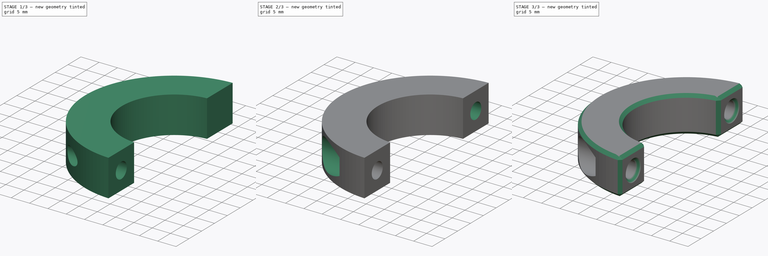
[diagram: build sequence overview — one tinted view per stage of 3, left to right]
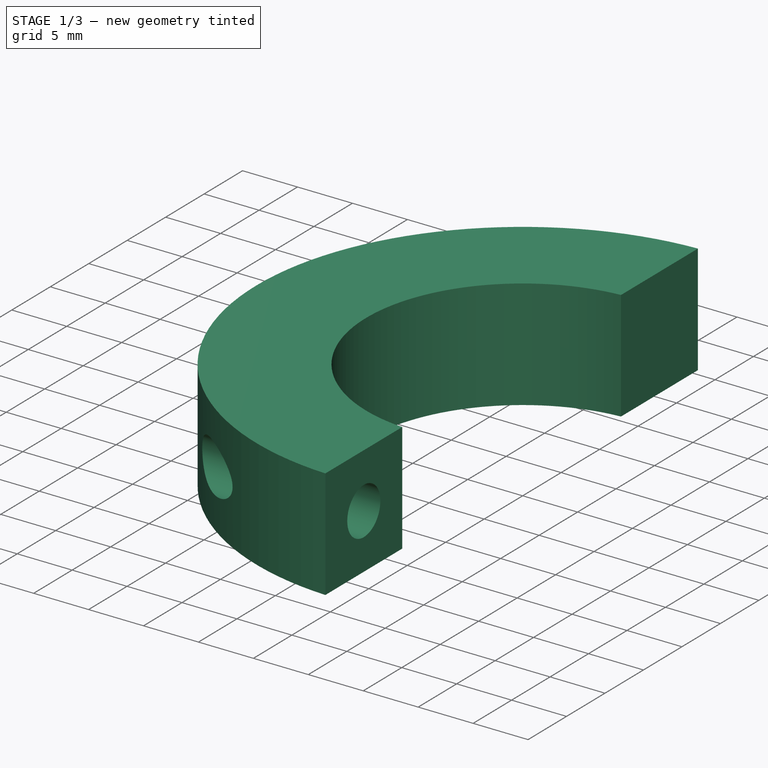
[diagram: stage 1 of 3 — iso view after this stage's code; geometry added in this stage tinted green]
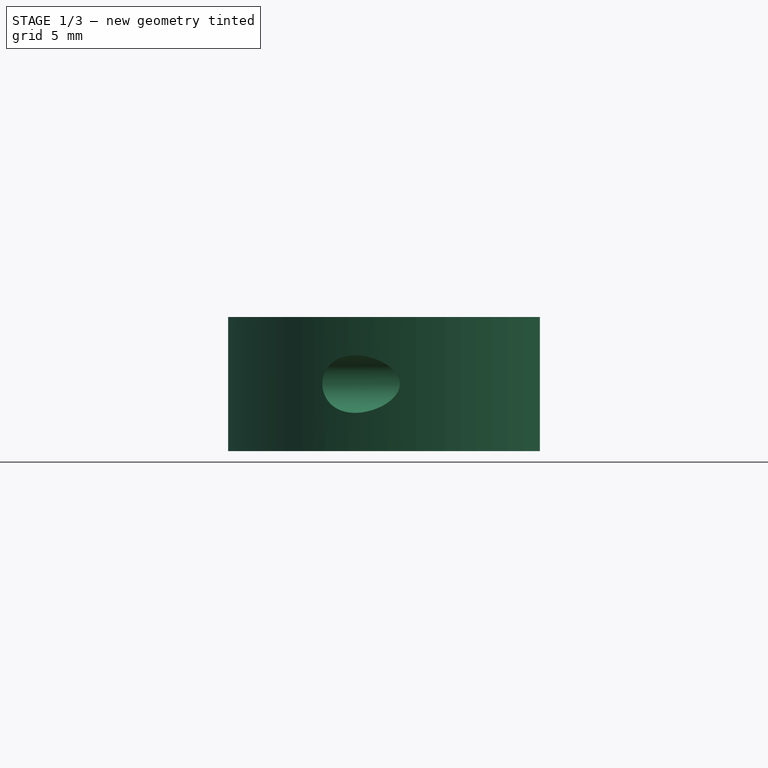
[diagram: stage 1 of 3 — front view after this stage's code; geometry added in this stage tinted green]
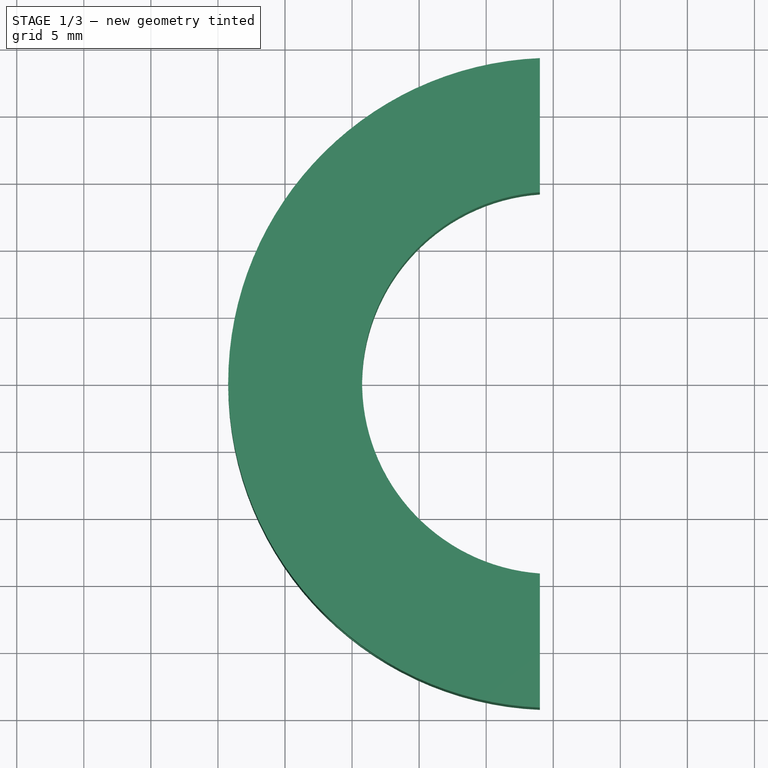
[diagram: stage 1 of 3 — top view after this stage's code; geometry added in this stage tinted green]
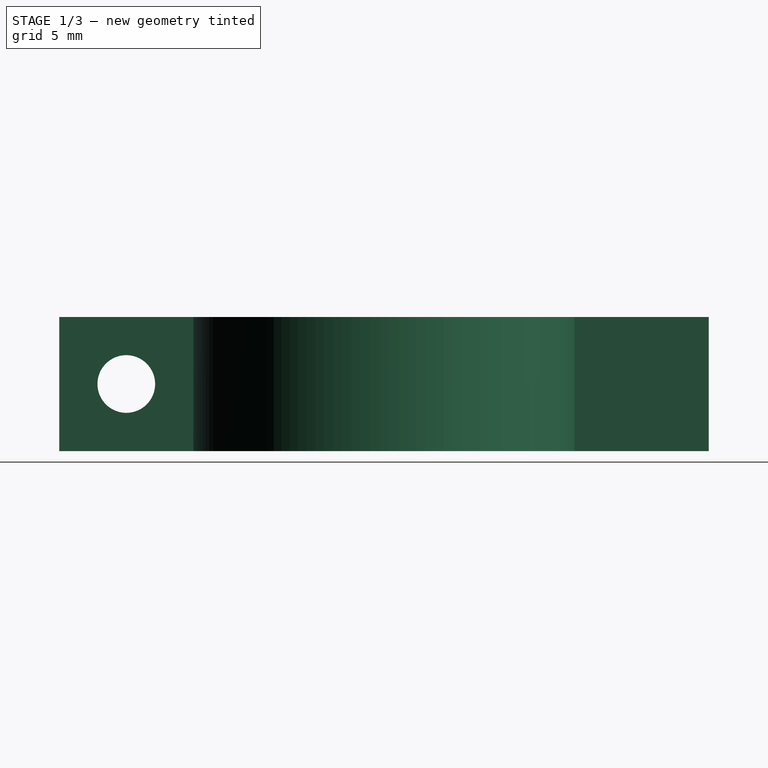
[diagram: stage 1 of 3 — right view after this stage's code; geometry added in this stage tinted green]
FCSTD DOCUMENT  (FreeCAD 0.19R24291 (Git))
Label: chair_height_retainer_M4
License: Other
LicenseURL: https://ohwr.org/project/cernohl/wikis/Documents/CERN-OHL-version-2
objects: Sketcher::SketchObject×5, PartDesign::Pocket×4, PartDesign::Pad×1, PartDesign::Plane×1, PartDesign::Chamfer×1, PartDesign::Body×1
note: 19 computed .brp shape members not serialized (recipe doc carries the construction recipe); baked Part::Feature solids carry a one-line shape summary decoded from their .brp

FEATURE [Sketcher::SketchObject] Sketch
  FullyConstrained = true
  MapMode = 5
  Support = -> [XY_Plane]
  sketch-geometry (5):
    g0: Circle CenterX=0 CenterY=0 CenterZ=0 NormalX=0 NormalY=0 NormalZ=1 AngleXU=0 Radius=14.25
    g1: LineSegment StartX=-1 StartY=14.2149 StartZ=0 EndX=-1 EndY=24.2149 EndZ=0
    g2: ArcOfCircle CenterX=0 CenterY=0 CenterZ=0 NormalX=0 NormalY=0 NormalZ=1 AngleXU=0 Radius=24.2355 StartAngle=1.61207 EndAngle=4.67112
    g3: LineSegment StartX=-1 StartY=-24.2149 StartZ=0 EndX=-1 EndY=-14.2149 EndZ=0
    g4: ArcOfCircle CenterX=0 CenterY=0 CenterZ=0 NormalX=0 NormalY=0 NormalZ=1 AngleXU=0 Radius=14.25 StartAngle=1.64103 EndAngle=4.64216
  constraints (14):
    c: Coincident(g0,g-1)
    c: Diameter(g0) = 28.5
    c: PointOnObject(g1,g0)
    c: Vertical(g1)
    c: Vertical(g3)
    c: Coincident(g4,g1)
    c: Coincident(g2,g3)
    c: Coincident(g4,g2)
    c: Coincident(g4,g-1)
    c: Coincident(g2,g1)
    c: Vertical(g1,g3)
    c: Coincident(g4,g3)
    c: DistanceY(g1,g1) = 10
    c: DistanceX(g-2,g1) = -1
FEATURE [PartDesign::Pad] Pad
  Direction = (1,1,1)
  Length = 10
  Length2 = 100
  Profile = -> Sketch
  Type = 0
FEATURE [Sketcher::SketchObject] Sketch001
  ExternalGeometry = -> [Pad]
  FullyConstrained = true
  MapMode = 5
  Placement = pos=(-1,0,0) rot=(0.57735,0.57735,0.57735;2.0944rad)
  Support = -> [Pad]
  sketch-geometry (3):
    g0: LineSegment StartX=-24.2149 StartY=5 StartZ=0 EndX=-19.2149 EndY=5 EndZ=0
    g1: LineSegment StartX=-19.2149 StartY=5 StartZ=0 EndX=-14.2149 EndY=5 EndZ=0
    g2: Circle CenterX=-19.2149 CenterY=5 CenterZ=0 NormalX=0 NormalY=0 NormalZ=1 AngleXU=0 Radius=2.15
  constraints (8):
    c: Horizontal(g0)
    c: Coincident(g1,g0)
    c: PointOnObject(g1,g-4)
    c: Horizontal(g1)
    c: Equal(g0,g1)
    c: Symmetric(g-3,g-3,g0)
    c: Coincident(g2,g0)
    c: Diameter(g2) = 4.3
FEATURE [PartDesign::Pocket] Pocket
  BaseFeature = -> Pad
  Length = 5
  Length2 = 100
  Profile = -> Sketch001
  Type = 1
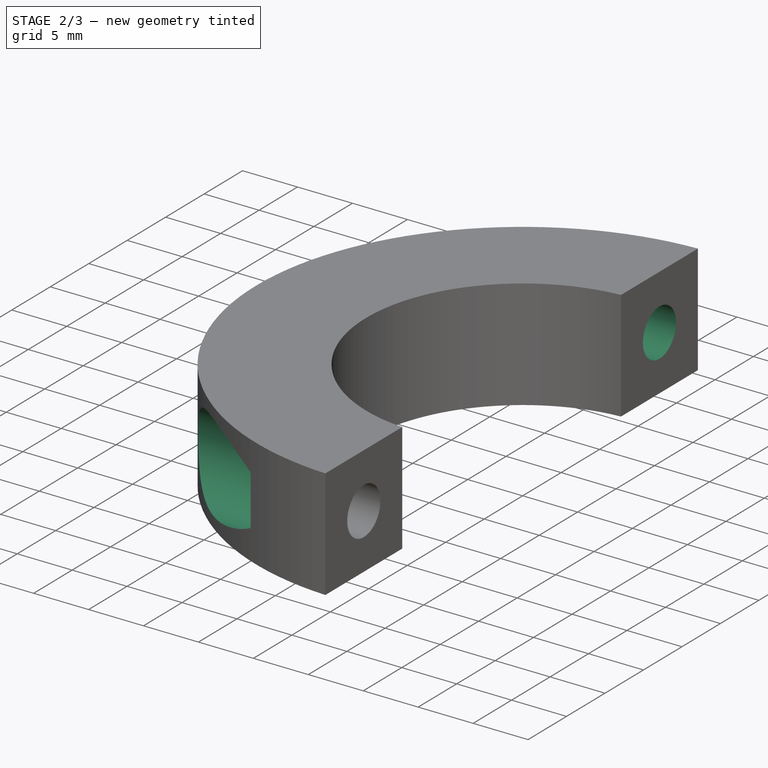
[diagram: stage 2 of 3 — iso view after this stage's code; geometry added in this stage tinted green]
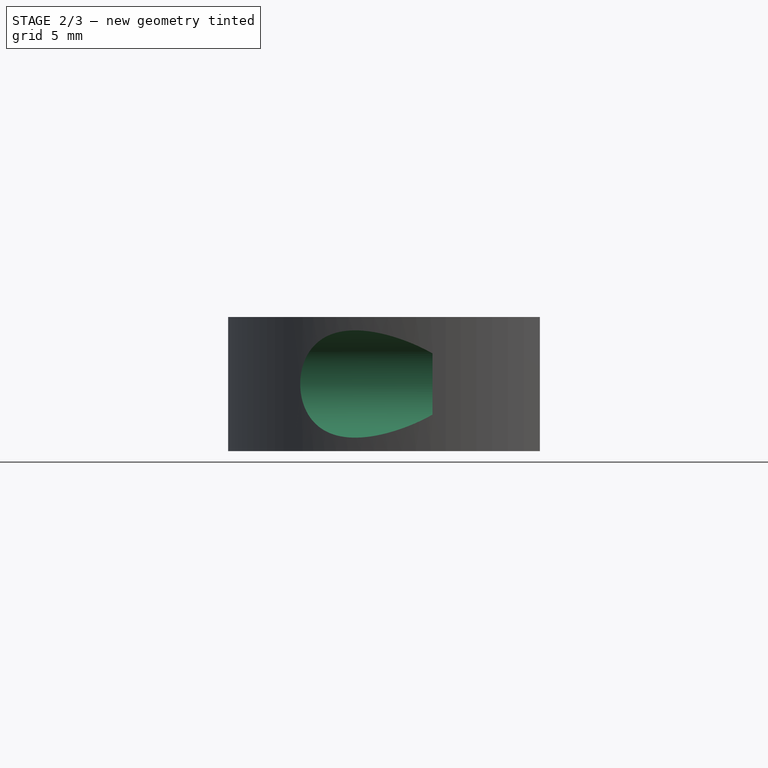
[diagram: stage 2 of 3 — front view after this stage's code; geometry added in this stage tinted green]
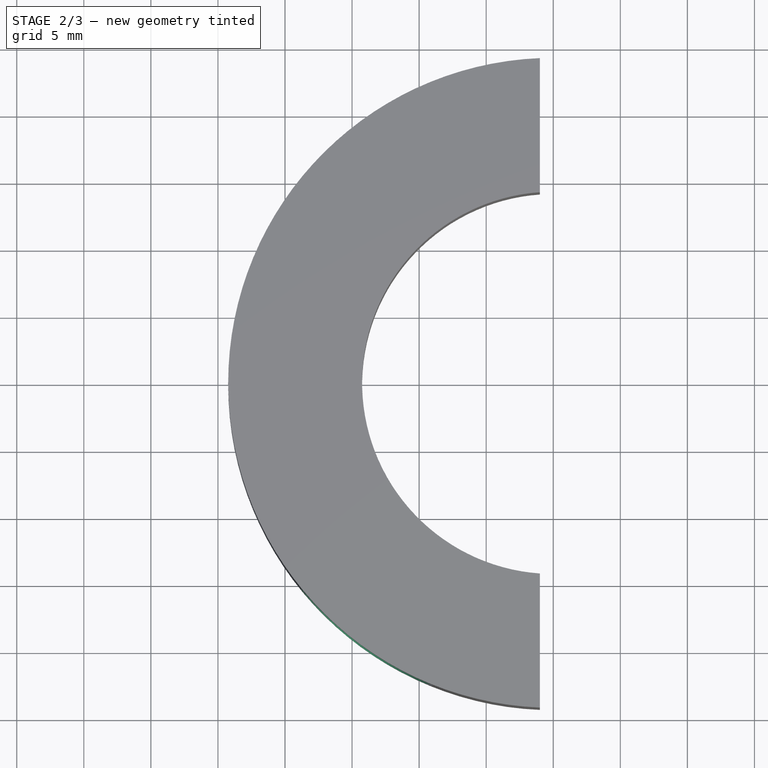
[diagram: stage 2 of 3 — top view after this stage's code; geometry added in this stage tinted green]
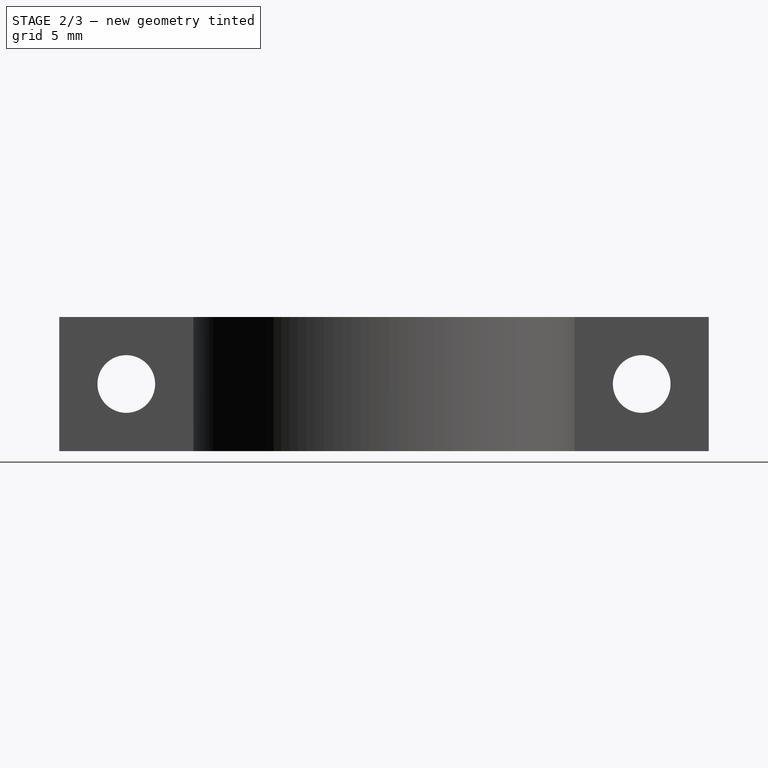
[diagram: stage 2 of 3 — right view after this stage's code; geometry added in this stage tinted green]
FEATURE [PartDesign::Plane] DatumPlane
  AttachmentOffset = pos=(0,0,-8) rot=(0,0,1;0rad)
  Length = 60
  MapMode = 45
  Placement = pos=(-9,-19.2149,5) rot=(0.57735,0.57735,0.57735;2.0944rad)
  ResizeMode = 0
  Support = -> [Pocket]
  Width = 60
FEATURE [Sketcher::SketchObject] Sketch002
  ExternalGeometry = -> [Pocket]
  FullyConstrained = true
  MapMode = 5
  Placement = pos=(-9,-19.2149,5) rot=(0.57735,-0.57735,-0.57735;2.0944rad)
  Support = -> [DatumPlane]
  sketch-geometry (1):
    g0: Circle CenterX=0 CenterY=0 CenterZ=0 NormalX=0 NormalY=0 NormalZ=1 AngleXU=0 Radius=4
  constraints (2):
    c: Coincident(g0,g-1)
    c: Diameter(g0) = 8
FEATURE [PartDesign::Pocket] Pocket001
  BaseFeature = -> Pocket
  Length = 5
  Length2 = 100
  Profile = -> Sketch002
  Reversed = true
  Type = 1
FEATURE [Sketcher::SketchObject] Sketch003
  ExternalGeometry = -> [Pocket001]
  FullyConstrained = true
  MapMode = 5
  Placement = pos=(-1,0,0) rot=(0.57735,0.57735,0.57735;2.0944rad)
  Support = -> [Pocket001]
  sketch-geometry (3):
    g0: LineSegment StartX=14.2149 StartY=5 StartZ=0 EndX=19.2149 EndY=5 EndZ=0
    g1: LineSegment StartX=19.2149 StartY=5 StartZ=0 EndX=24.2149 EndY=5 EndZ=0
    g2: Circle CenterX=19.2149 CenterY=5 CenterZ=0 NormalX=0 NormalY=0 NormalZ=1 AngleXU=0 Radius=2.15
  constraints (8):
    c: Horizontal(g0)
    c: Coincident(g1,g0)
    c: PointOnObject(g1,g-4)
    c: Horizontal(g1)
    c: Equal(g0,g1)
    c: Symmetric(g-3,g-3,g0)
    c: Coincident(g2,g0)
    c: Equal(g2,g-5)
FEATURE [PartDesign::Pocket] Pocket002
  BaseFeature = -> Pocket001
  Length = 5
  Length2 = 100
  Profile = -> Sketch003
  Type = 1
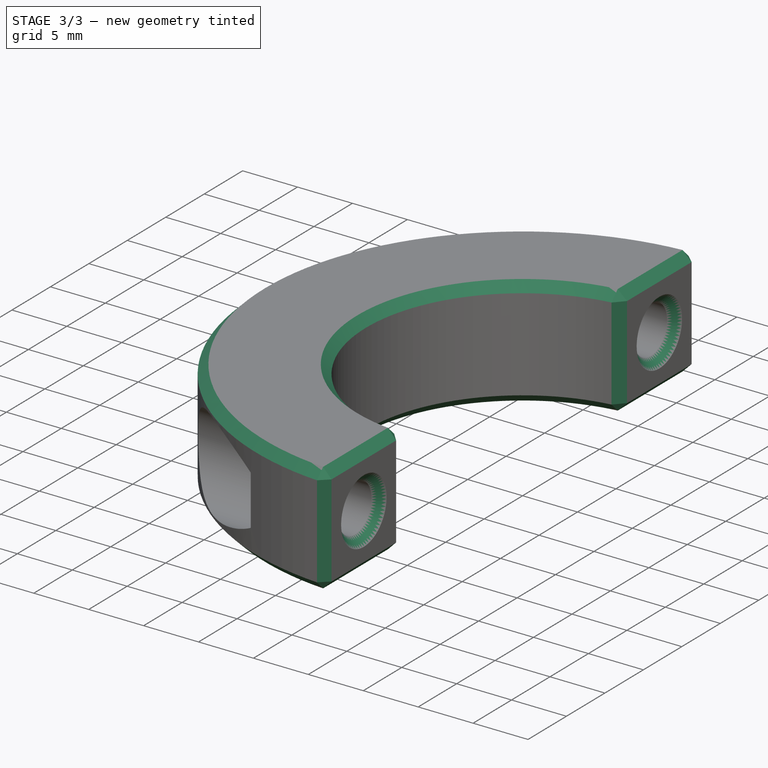
[diagram: stage 3 of 3 — iso view after this stage's code; geometry added in this stage tinted green]
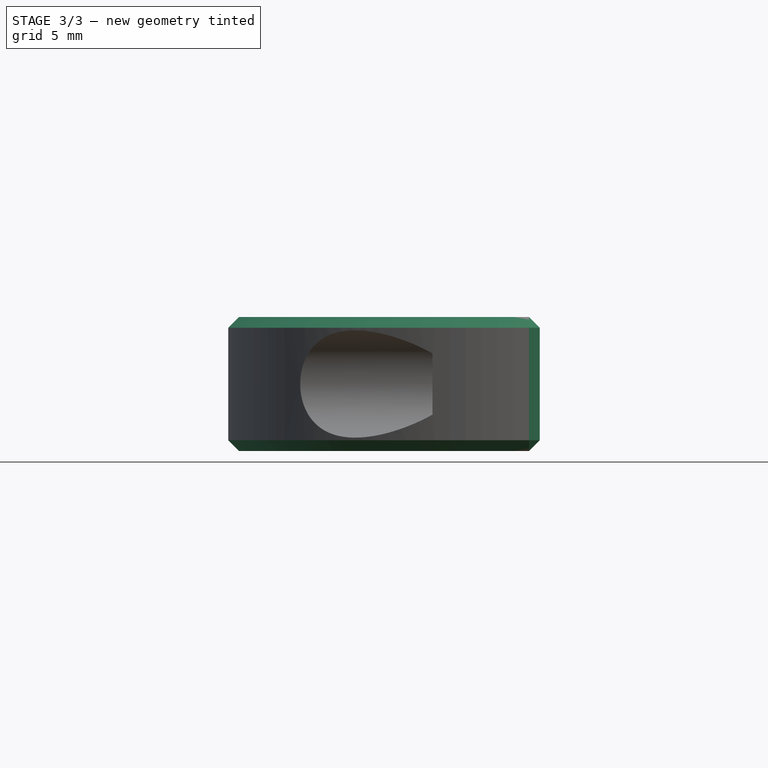
[diagram: stage 3 of 3 — front view after this stage's code; geometry added in this stage tinted green]
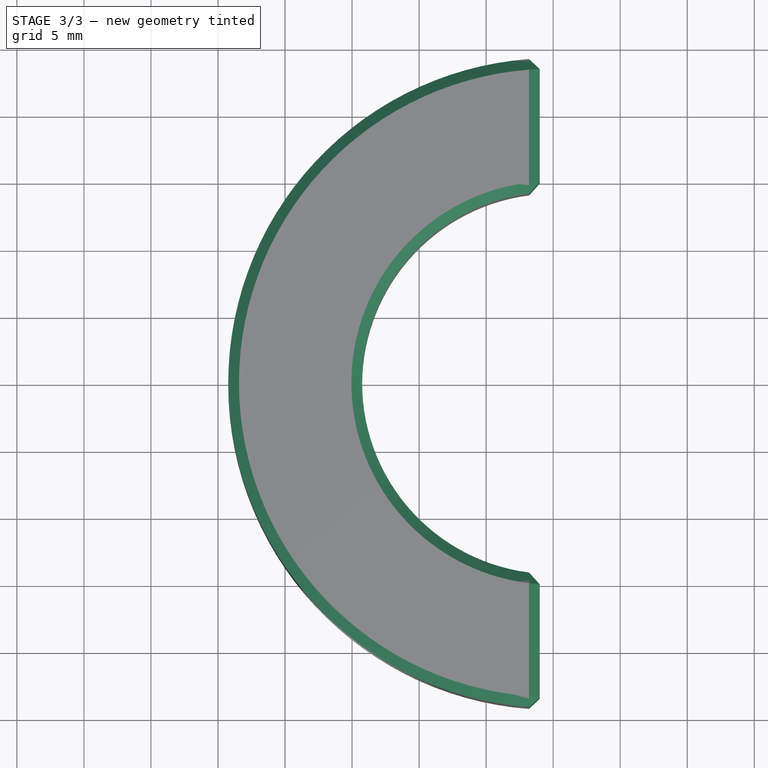
[diagram: stage 3 of 3 — top view after this stage's code; geometry added in this stage tinted green]
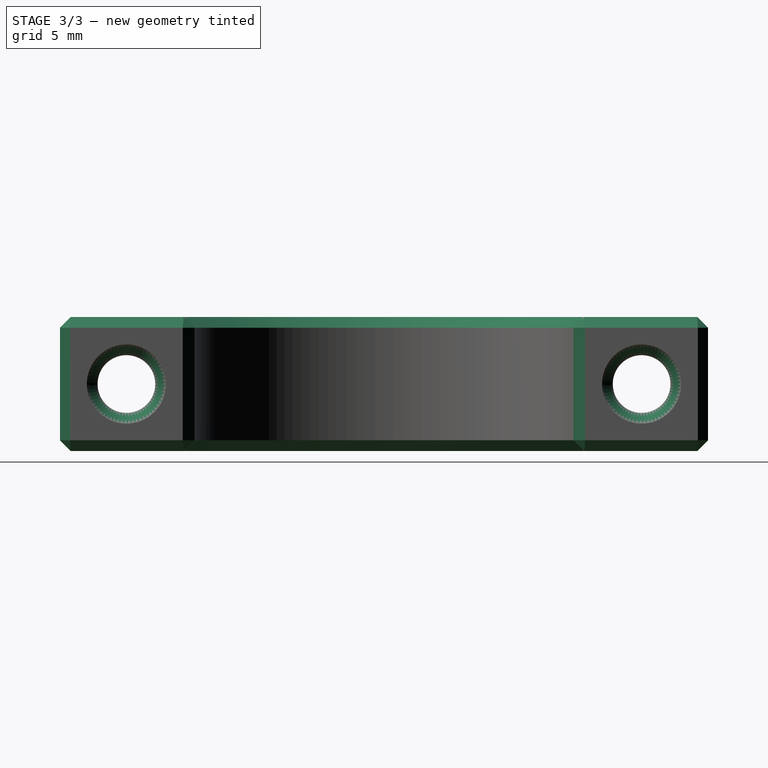
[diagram: stage 3 of 3 — right view after this stage's code; geometry added in this stage tinted green]
FEATURE [Sketcher::SketchObject] Sketch004
  ExternalGeometry = -> [Pocket002]
  FullyConstrained = true
  MapMode = 5
  Placement = pos=(-9,-19.2149,5) rot=(0.57735,-0.57735,-0.57735;2.0944rad)
  Support = -> [DatumPlane]
  sketch-geometry (7):
    g0: LineSegment StartX=-41.9297 StartY=2.02073 StartZ=0 EndX=-41.9297 EndY=-2.02073 EndZ=0
    g1: LineSegment StartX=-41.9297 StartY=-2.02073 StartZ=0 EndX=-38.4297 EndY=-4.04145 EndZ=0
    g2: LineSegment StartX=-38.4297 StartY=-4.04145 StartZ=0 EndX=-34.9297 EndY=-2.02073 EndZ=0
    g3: LineSegment StartX=-34.9297 StartY=-2.02073 StartZ=0 EndX=-34.9297 EndY=2.02073 EndZ=0
    g4: LineSegment StartX=-34.9297 StartY=2.02073 StartZ=0 EndX=-38.4297 EndY=4.04145 EndZ=0
    g5: LineSegment StartX=-38.4297 StartY=4.04145 StartZ=0 EndX=-41.9297 EndY=2.02073 EndZ=0
    g6: Circle CenterX=-38.4297 CenterY=0 CenterZ=0 NormalX=0 NormalY=0 NormalZ=1 AngleXU=0 Radius=4.04145
  constraints (16):
    c: Coincident(g0,g1)
    c: Coincident(g1,g2)
    c: Coincident(g2,g3)
    c: Coincident(g3,g4)
    c: Coincident(g4,g5)
    c: Coincident(g5,g0)
    c: Equal(g0, g1-g5) x5
    c: PointOnObject(g0,g6)
    c: PointOnObject(g1,g6)
    c: PointOnObject(g2,g6)
    c: PointOnObject(g3,g6)
    c: PointOnObject(g4,g6)
    c: PointOnObject(g5,g6)
    c: Coincident(g6,g-3)
    c: Vertical(g0)
    c: DistanceX(g0,g3) = 7
FEATURE [PartDesign::Pocket] Pocket003
  BaseFeature = -> Pocket002
  Length = 5
  Length2 = 100
  Profile = -> Sketch004
  Reversed = true
  Type = 1
FEATURE [PartDesign::Chamfer] Chamfer
  Angle = 45
  Base = -> Pocket003 [Face4,Face3,Face1,Face7,Face2]
  BaseFeature = -> Pocket003
  ChamferType = 0
  FlipDirection = false
  Size = 0.8
  Size2 = 1
  SupportTransform = false
FEATURE [PartDesign::Body] Body
  Group = -> [Sketch,Pad,Sketch001,Pocket,DatumPlane,Sketch002,Pocket001,Sketch003,Pocket002,Sketch004,Pocket003,Chamfer]
  Origin = -> Origin
  Tip = -> Chamfer
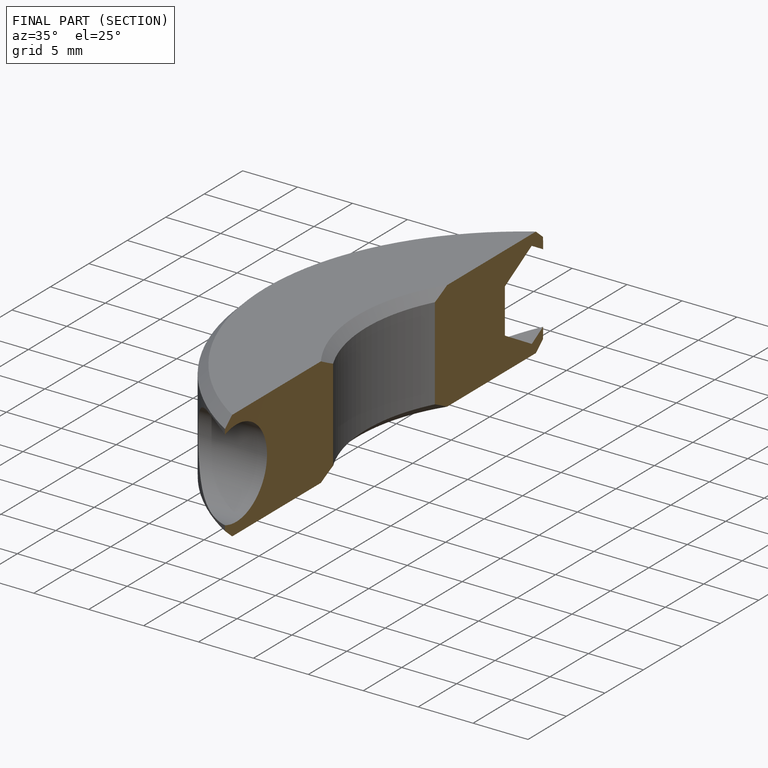
[diagram: finished part — half-section view (interior)]
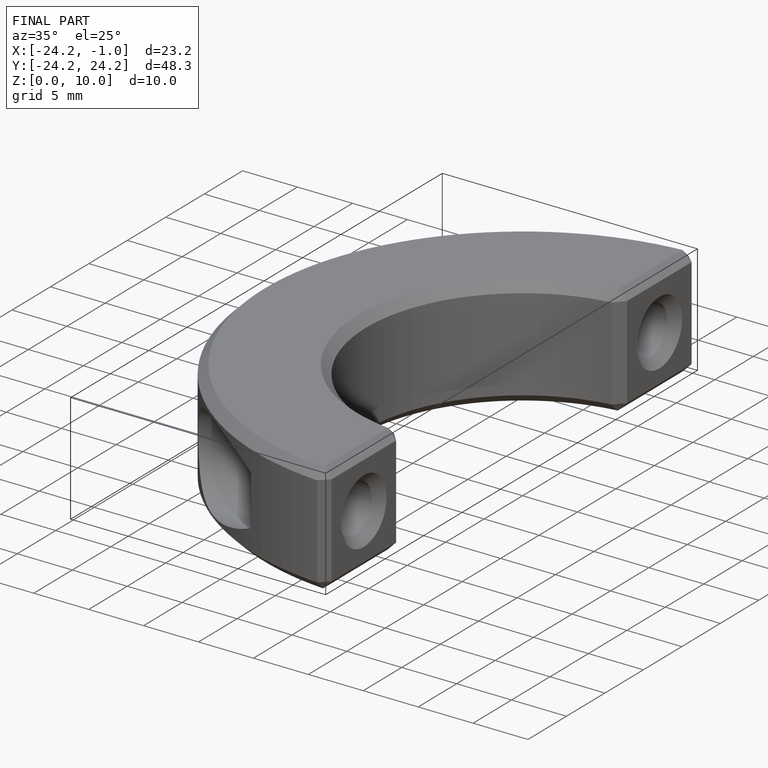
[diagram: finished part — iso view with bounding-box wireframe]
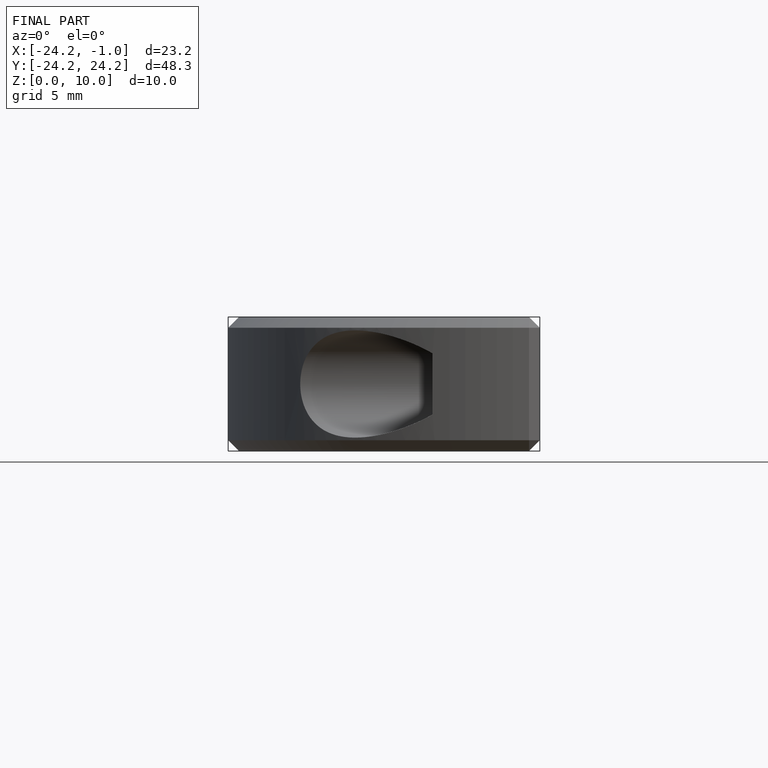
[diagram: finished part — front view with bounding-box wireframe]
